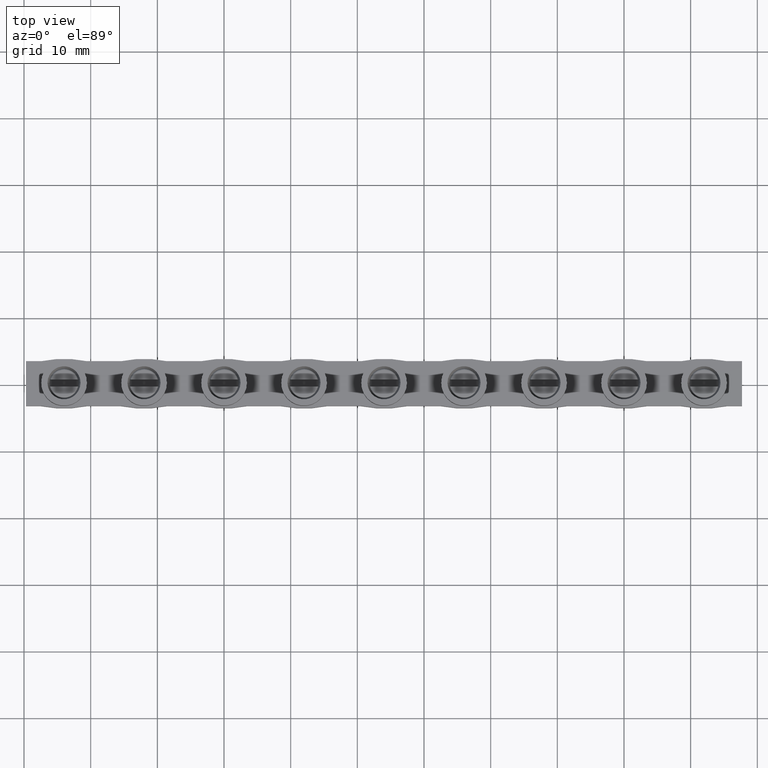
[diagram: clean part render]
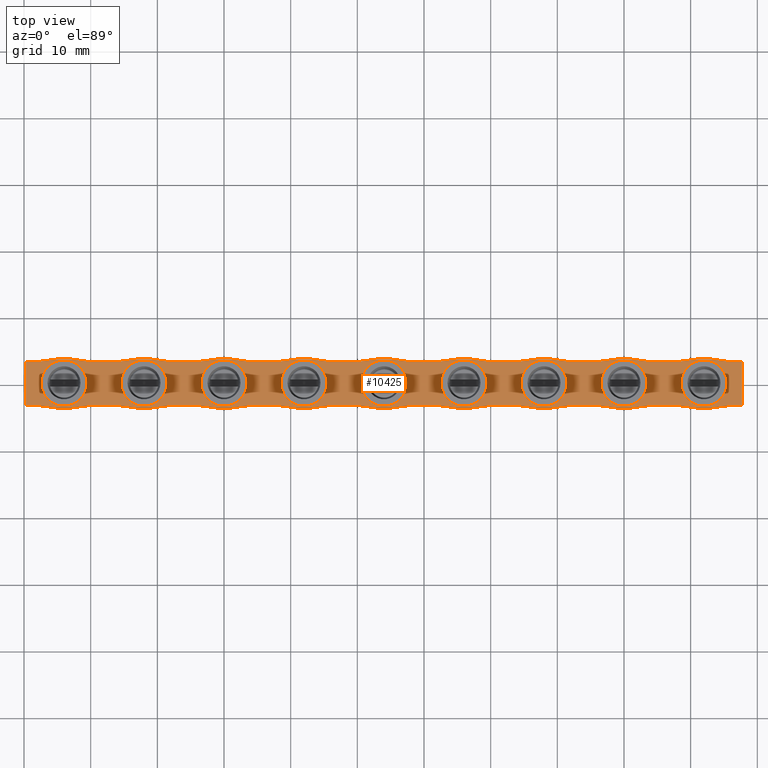
[diagram: same view with one face highlighted and labeled with its STEP entity id]
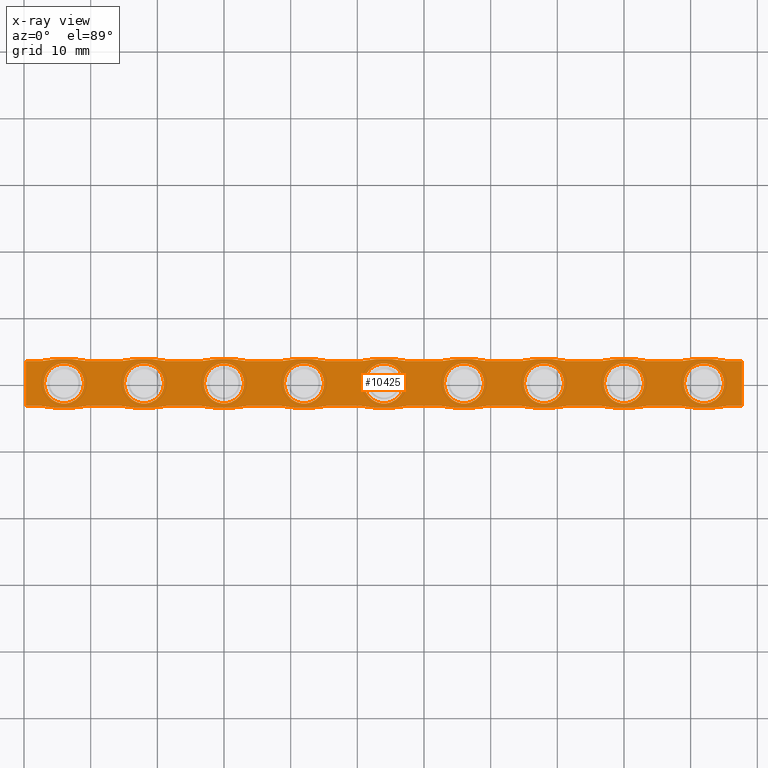
[diagram: x-ray of the same camera — body ghosted, the highlighted face saturated]
A machine part, top view. The second image highlights one B-rep face of the part: STEP entity #10425.
The next image is the same camera in x-ray: the body ghosted, the highlighted face saturated — about 0% of this face is hidden behind the body in this view.
In plain terms, the highlighted planar face has unit normal (0, 0, -1).
Its self-contained STEP definition (entity closure, byte-faithful):
#116 = CARTESIAN_POINT ( 'NONE',  ( -12.00000000000000000, -2.289291466493766400E-015, -0.9000000000000014700 ) ) ;
#120 = DIRECTION ( 'NONE',  ( -1.000000000000000000, 0.0000000000000000000, 0.0000000000000000000 ) ) ;
#145 = DIRECTION ( 'NONE',  ( 0.0000000000000000000, 0.0000000000000000000, 1.000000000000000000 ) ) ;
#157 = CARTESIAN_POINT ( 'NONE',  ( -24.00000000000000000, -4.578582932987532800E-015, -0.9000000000000014700 ) ) ;
#164 = DIRECTION ( 'NONE',  ( 0.0000000000000000000, 0.0000000000000000000, 1.000000000000000000 ) ) ;
#196 = DIRECTION ( 'NONE',  ( -1.000000000000000000, 0.0000000000000000000, 0.0000000000000000000 ) ) ;
#320 = CARTESIAN_POINT ( 'NONE',  ( -56.99999999999999300, -1.107906329272462600E-014, -0.9000000000000014700 ) ) ;
#352 = CARTESIAN_POINT ( 'NONE',  ( -27.00000000000000000, -4.578582932987532800E-015, -0.9000000000000014700 ) ) ;
#372 = CARTESIAN_POINT ( 'NONE',  ( -51.00000000000000700, -9.157165865975065600E-015, -0.9000000000000014700 ) ) ;
#382 = CARTESIAN_POINT ( 'NONE',  ( -33.00000000000000000, -6.500480359737095000E-015, -0.9000000000000014700 ) ) ;
#436 = CARTESIAN_POINT ( 'NONE',  ( 15.00000000000000000, 1.833357540569354400E-015, -0.9000000000000014700 ) ) ;
#460 = CARTESIAN_POINT ( 'NONE',  ( -45.00000000000000000, -8.789771826230860200E-015, -0.9000000000000014700 ) ) ;
#486 = CARTESIAN_POINT ( 'NONE',  ( -39.00000000000000700, -6.867874399481300400E-015, -0.9000000000000014700 ) ) ;
#487 = CARTESIAN_POINT ( 'NONE',  ( -2.999999999999999100, 0.0000000000000000000, -0.9000000000000014700 ) ) ;
#510 = CARTESIAN_POINT ( 'NONE',  ( -21.00000000000000000, -4.211188893243326600E-015, -0.9000000000000014700 ) ) ;
#515 = CARTESIAN_POINT ( 'NONE',  ( -15.00000000000000000, -2.289291466493766400E-015, -0.9000000000000014700 ) ) ;
#562 = CARTESIAN_POINT ( 'NONE',  ( 9.000000000000001800, 1.465963500825148300E-015, -0.9000000000000014700 ) ) ;
#570 = CARTESIAN_POINT ( 'NONE',  ( -89.70000000000000300, 3.350000000000068500, -0.9000000000000014700 ) ) ;
#571 = CARTESIAN_POINT ( 'NONE',  ( -80.57326686186493700, 3.350000000000069400, -0.9000000000000014700 ) ) ;
#591 = CARTESIAN_POINT ( 'NONE',  ( -68.57326686186493700, 3.350000000000071600, -0.9000000000000014700 ) ) ;
#604 = CARTESIAN_POINT ( 'NONE',  ( -3.447100230629700900, -3.349999999999916600, -0.9000000000000014700 ) ) ;
#611 = CARTESIAN_POINT ( 'NONE',  ( 8.573266861864922800, 3.350000000000086200, -0.9000000000000014700 ) ) ;
#613 = CARTESIAN_POINT ( 'NONE',  ( 2.999999999999999100, 3.673940397442058900E-016, -0.9000000000000014700 ) ) ;
#619 = CARTESIAN_POINT ( 'NONE',  ( -87.42673313813507700, 3.350000000000068500, -0.9000000000000014700 ) ) ;
#631 = CARTESIAN_POINT ( 'NONE',  ( -8.552899769370284800, -3.349999999999917900, -0.9000000000000014700 ) ) ;
#637 = CARTESIAN_POINT ( 'NONE',  ( -9.000000000000001800, -1.921897426749560600E-015, -0.9000000000000014700 ) ) ;
#641 = CARTESIAN_POINT ( 'NONE',  ( 15.44710023062971500, -3.349999999999914400, -0.9000000000000014700 ) ) ;
#653 = CARTESIAN_POINT ( 'NONE',  ( -63.44710023062970100, -3.349999999999927700, -0.9000000000000014700 ) ) ;
#654 = CARTESIAN_POINT ( 'NONE',  ( -39.44710023062970800, -3.349999999999923300, -0.9000000000000014700 ) ) ;
#661 = CARTESIAN_POINT ( 'NONE',  ( -8.573266861864919300, 3.350000000000083600, -0.9000000000000014700 ) ) ;
#662 = CARTESIAN_POINT ( 'NONE',  ( -44.57326686186492300, 3.350000000000076500, -0.9000000000000014700 ) ) ;
#669 = CARTESIAN_POINT ( 'NONE',  ( 3.426733138135080300, 3.350000000000085400, -0.9000000000000014700 ) ) ;
#673 = CARTESIAN_POINT ( 'NONE',  ( -63.42673313813507000, 3.350000000000073400, -0.9000000000000014700 ) ) ;
#675 = CARTESIAN_POINT ( 'NONE',  ( -56.55289976937027800, -3.349999999999926800, -0.9000000000000014700 ) ) ;
#681 = CARTESIAN_POINT ( 'NONE',  ( -75.42673313813507700, 3.350000000000070700, -0.9000000000000014700 ) ) ;
#687 = CARTESIAN_POINT ( 'NONE',  ( 17.69999999999921800, 3.350000000000087100, -0.9000000000000014700 ) ) ;
#693 = CARTESIAN_POINT ( 'NONE',  ( -27.42673313813508100, 3.350000000000080000, -0.9000000000000014700 ) ) ;
#695 = CARTESIAN_POINT ( 'NONE',  ( -15.44710023062970100, -3.349999999999918400, -0.9000000000000014700 ) ) ;
#702 = CARTESIAN_POINT ( 'NONE',  ( 8.552899769370297300, -3.349999999999914800, -0.9000000000000014700 ) ) ;
#706 = CARTESIAN_POINT ( 'NONE',  ( -20.55289976937028500, -3.349999999999920200, -0.9000000000000014700 ) ) ;
#707 = CARTESIAN_POINT ( 'NONE',  ( -56.57326686186491600, 3.350000000000074300, -0.9000000000000014700 ) ) ;
#708 = DIRECTION ( 'NONE',  ( -1.000000000000000000, 0.0000000000000000000, 0.0000000000000000000 ) ) ;
#714 = CARTESIAN_POINT ( 'NONE',  ( 17.69999999999921800, -3.349999999999913900, -0.9000000000000014700 ) ) ;
#728 = CARTESIAN_POINT ( 'NONE',  ( -68.55289976937028500, -3.349999999999929500, -0.9000000000000014700 ) ) ;
#730 = CARTESIAN_POINT ( 'NONE',  ( -27.44710023062970100, -3.349999999999921000, -0.9000000000000014700 ) ) ;
#735 = CARTESIAN_POINT ( 'NONE',  ( -87.44710023062971500, -3.349999999999932600, -0.9000000000000014700 ) ) ;
#736 = CARTESIAN_POINT ( 'NONE',  ( -3.426733138135080300, 3.350000000000084500, -0.9000000000000014700 ) ) ;
#741 = CARTESIAN_POINT ( 'NONE',  ( -20.57326686186491900, 3.350000000000080900, -0.9000000000000014700 ) ) ;
#744 = CARTESIAN_POINT ( 'NONE',  ( -32.55289976937028500, -3.349999999999922400, -0.9000000000000014700 ) ) ;
#745 = CARTESIAN_POINT ( 'NONE',  ( -80.55289976937028500, -3.349999999999931700, -0.9000000000000014700 ) ) ;
#746 = CARTESIAN_POINT ( 'NONE',  ( -89.70000000000000300, -3.349999999999932600, -0.9000000000000014700 ) ) ;
#749 = CARTESIAN_POINT ( 'NONE',  ( -44.55289976937028500, -3.349999999999924600, -0.9000000000000014700 ) ) ;
#756 = CARTESIAN_POINT ( 'NONE',  ( -75.44710023062971500, -3.349999999999930400, -0.9000000000000014700 ) ) ;
#760 = CARTESIAN_POINT ( 'NONE',  ( -51.42673313813508400, 3.350000000000075600, -0.9000000000000014700 ) ) ;
#764 = CARTESIAN_POINT ( 'NONE',  ( -39.42673313813508400, 3.350000000000077800, -0.9000000000000014700 ) ) ;
#765 = DIRECTION ( 'NONE',  ( 0.0000000000000000000, 0.0000000000000000000, 1.000000000000000000 ) ) ;
#766 = CARTESIAN_POINT ( 'NONE',  ( 3.447100230629714700, -3.349999999999915700, -0.9000000000000014700 ) ) ;
#779 = CARTESIAN_POINT ( 'NONE',  ( -51.44710023062970800, -3.349999999999925500, -0.9000000000000014700 ) ) ;
#781 = CARTESIAN_POINT ( 'NONE',  ( -15.42673313813508100, 3.350000000000082700, -0.9000000000000014700 ) ) ;
#797 = CARTESIAN_POINT ( 'NONE',  ( 12.00000000000000000, 1.465963500825148300E-015, -0.9000000000000014700 ) ) ;
#808 = DIRECTION ( 'NONE',  ( 0.0000000000000000000, 0.0000000000000000000, 1.000000000000000000 ) ) ;
#814 = CARTESIAN_POINT ( 'NONE',  ( -72.00000000000001400, -13.25000000000035900, -0.9000000000000014700 ) ) ;
#853 = CARTESIAN_POINT ( 'NONE',  ( 15.42673313813508100, 3.350000000000086700, -0.9000000000000014700 ) ) ;
#872 = DIRECTION ( 'NONE',  ( -0.0000000000000000000, -0.0000000000000000000, -1.000000000000000000 ) ) ;
#879 = CARTESIAN_POINT ( 'NONE',  ( -32.57326686186492300, 3.350000000000078700, -0.9000000000000014700 ) ) ;
#892 = DIRECTION ( 'NONE',  ( -1.000000000000000000, 0.0000000000000000000, 0.0000000000000000000 ) ) ;
#900 = CARTESIAN_POINT ( 'NONE',  ( -12.00000000000000000, -2.289291466493766400E-015, -0.9000000000000014700 ) ) ;
#910 = DIRECTION ( 'NONE',  ( 1.000000000000000000, 0.0000000000000000000, 0.0000000000000000000 ) ) ;
#1921 = CARTESIAN_POINT ( 'NONE',  ( -81.00000000000000000, -1.565764622571216100E-014, -0.9000000000000014700 ) ) ;
#1931 = CARTESIAN_POINT ( 'NONE',  ( -69.00000000000000000, -1.336835475921839500E-014, -0.9000000000000014700 ) ) ;
#1980 = CARTESIAN_POINT ( 'NONE',  ( -87.00000000000001400, -1.602504026545636700E-014, -0.9000000000000014700 ) ) ;
#1992 = CARTESIAN_POINT ( 'NONE',  ( -63.00000000000000000, -1.144645733246883200E-014, -0.9000000000000014700 ) ) ;
#2029 = CARTESIAN_POINT ( 'NONE',  ( -75.00000000000001400, -1.373574879896260100E-014, -0.9000000000000014700 ) ) ;
#4192 = AXIS2_PLACEMENT_3D ( 'NONE', #12178, #12187, #12181 ) ;
#4199 = AXIS2_PLACEMENT_3D ( 'NONE', #11339, #11304, #11341 ) ;
#4203 = CIRCLE ( 'NONE', #4192, 3.000000000000002700 ) ;
#4233 = CIRCLE ( 'NONE', #4199, 3.000000000000002700 ) ;
#4292 = CIRCLE ( 'NONE', #4295, 3.000000000000002700 ) ;
#4295 = AXIS2_PLACEMENT_3D ( 'NONE', #11892, #11894, #11873 ) ;
#4380 = CIRCLE ( 'NONE', #4381, 3.000000000000002700 ) ;
#4381 = AXIS2_PLACEMENT_3D ( 'NONE', #12118, #12096, #12120 ) ;
#4395 = AXIS2_PLACEMENT_3D ( 'NONE', #11821, #12095, #10262 ) ;
#4403 = CIRCLE ( 'NONE', #4395, 3.000000000000002700 ) ;
#4441 = AXIS2_PLACEMENT_3D ( 'NONE', #5558, #5537, #5580 ) ;
#4446 = CIRCLE ( 'NONE', #4441, 2.999999999999999100 ) ;
#4449 = CIRCLE ( 'NONE', #4482, 2.999999999999999100 ) ;
#4482 = AXIS2_PLACEMENT_3D ( 'NONE', #157, #164, #196 ) ;
#4552 = AXIS2_PLACEMENT_3D ( 'NONE', #797, #765, #708 ) ;
#4578 = CIRCLE ( 'NONE', #4552, 2.999999999999999100 ) ;
#4613 = AXIS2_PLACEMENT_3D ( 'NONE', #116, #145, #120 ) ;
#4614 = CIRCLE ( 'NONE', #4637, 2.999999999999999100 ) ;
#4628 = AXIS2_PLACEMENT_3D ( 'NONE', #814, #872, #910 ) ;
#4632 = CIRCLE ( 'NONE', #4628, 16.95000000000021600 ) ;
#4635 = CIRCLE ( 'NONE', #4613, 2.999999999999999100 ) ;
#4637 = AXIS2_PLACEMENT_3D ( 'NONE', #900, #808, #892 ) ;
#4653 = AXIS2_PLACEMENT_3D ( 'NONE', #12279, #12265, #12270 ) ;
#4656 = CIRCLE ( 'NONE', #4688, 16.95000000000021600 ) ;
#4667 = VECTOR ( 'NONE', #12255, 1000.000000000000000 ) ;
#4668 = AXIS2_PLACEMENT_3D ( 'NONE', #12205, #12212, #12224 ) ;
#4677 = VECTOR ( 'NONE', #12246, 1000.000000000000000 ) ;
#4684 = CIRCLE ( 'NONE', #4653, 2.999999999999999100 ) ;
#4686 = VECTOR ( 'NONE', #12252, 1000.000000000000000 ) ;
#4688 = AXIS2_PLACEMENT_3D ( 'NONE', #12293, #12328, #12311 ) ;
#4690 = CIRCLE ( 'NONE', #4668, 17.15000000000021900 ) ;
#4695 = VECTOR ( 'NONE', #12373, 1000.000000000000000 ) ;
#4701 = VECTOR ( 'NONE', #12359, 1000.000000000000000 ) ;
#4703 = CIRCLE ( 'NONE', #4716, 16.95000000000022000 ) ;
#4706 = CIRCLE ( 'NONE', #4707, 16.95000000000022000 ) ;
#4707 = AXIS2_PLACEMENT_3D ( 'NONE', #12339, #12337, #12363 ) ;
#4709 = CIRCLE ( 'NONE', #4713, 16.95000000000022000 ) ;
#4713 = AXIS2_PLACEMENT_3D ( 'NONE', #12353, #12370, #12360 ) ;
#4715 = VECTOR ( 'NONE', #12335, 1000.000000000000000 ) ;
#4716 = AXIS2_PLACEMENT_3D ( 'NONE', #12343, #12352, #12341 ) ;
#4717 = CIRCLE ( 'NONE', #4718, 17.15000000000021900 ) ;
#4718 = AXIS2_PLACEMENT_3D ( 'NONE', #12355, #12356, #12364 ) ;
#4719 = VECTOR ( 'NONE', #12336, 1000.000000000000000 ) ;
#4721 = VECTOR ( 'NONE', #12306, 1000.000000000000000 ) ;
#4724 = VECTOR ( 'NONE', #12346, 1000.000000000000000 ) ;
#4726 = VECTOR ( 'NONE', #12354, 1000.000000000000000 ) ;
#4727 = CIRCLE ( 'NONE', #4752, 17.15000000000021900 ) ;
#4729 = CIRCLE ( 'NONE', #4758, 16.95000000000022000 ) ;
#4731 = CIRCLE ( 'NONE', #4740, 3.000000000000002700 ) ;
#4737 = CIRCLE ( 'NONE', #4755, 3.000000000000002700 ) ;
#4738 = AXIS2_PLACEMENT_3D ( 'NONE', #12406, #12399, #12379 ) ;
#4740 = AXIS2_PLACEMENT_3D ( 'NONE', #12454, #12462, #12434 ) ;
#4741 = AXIS2_PLACEMENT_3D ( 'NONE', #12382, #12384, #12386 ) ;
#4744 = CIRCLE ( 'NONE', #4760, 3.000000000000002700 ) ;
#4746 = VECTOR ( 'NONE', #12378, 1000.000000000000000 ) ;
#4747 = CIRCLE ( 'NONE', #4765, 16.95000000000022000 ) ;
#4750 = CIRCLE ( 'NONE', #4766, 17.15000000000021900 ) ;
#4751 = CIRCLE ( 'NONE', #4738, 16.95000000000021600 ) ;
#4752 = AXIS2_PLACEMENT_3D ( 'NONE', #12410, #12411, #12397 ) ;
#4753 = CIRCLE ( 'NONE', #4741, 2.999999999999999100 ) ;
#4754 = VECTOR ( 'NONE', #12458, 1000.000000000000000 ) ;
#4755 = AXIS2_PLACEMENT_3D ( 'NONE', #12451, #12438, #12433 ) ;
#4757 = VECTOR ( 'NONE', #12452, 1000.000000000000000 ) ;
#4758 = AXIS2_PLACEMENT_3D ( 'NONE', #12443, #12453, #12461 ) ;
#4760 = AXIS2_PLACEMENT_3D ( 'NONE', #12427, #12428, #12460 ) ;
#4762 = CIRCLE ( 'NONE', #4777, 3.000000000000002700 ) ;
#4763 = VECTOR ( 'NONE', #12426, 1000.000000000000000 ) ;
#4765 = AXIS2_PLACEMENT_3D ( 'NONE', #12348, #12420, #12394 ) ;
#4766 = AXIS2_PLACEMENT_3D ( 'NONE', #12422, #12464, #12456 ) ;
#4768 = CIRCLE ( 'NONE', #4769, 17.15000000000021900 ) ;
#4769 = AXIS2_PLACEMENT_3D ( 'NONE', #12485, #12473, #12500 ) ;
#4770 = VECTOR ( 'NONE', #12421, 1000.000000000000000 ) ;
#4772 = VECTOR ( 'NONE', #12471, 1000.000000000000000 ) ;
#4774 = VECTOR ( 'NONE', #12459, 1000.000000000000000 ) ;
#4775 = VECTOR ( 'NONE', #12493, 1000.000000000000000 ) ;
#4776 = VECTOR ( 'NONE', #12401, 1000.000000000000000 ) ;
#4777 = AXIS2_PLACEMENT_3D ( 'NONE', #12404, #12387, #12390 ) ;
#4778 = CIRCLE ( 'NONE', #4794, 17.15000000000021900 ) ;
#4782 = AXIS2_PLACEMENT_3D ( 'NONE', #12533, #12522, #12526 ) ;
#4786 = AXIS2_PLACEMENT_3D ( 'NONE', #12534, #12516, #12520 ) ;
#4789 = CIRCLE ( 'NONE', #4786, 17.15000000000021900 ) ;
#4790 = AXIS2_PLACEMENT_3D ( 'NONE', #12465, #12491, #12494 ) ;
#4792 = AXIS2_PLACEMENT_3D ( 'NONE', #12536, #12537, #12538 ) ;
#4793 = VECTOR ( 'NONE', #12539, 1000.000000000000000 ) ;
#4794 = AXIS2_PLACEMENT_3D ( 'NONE', #12499, #12480, #12495 ) ;
#4796 = VECTOR ( 'NONE', #12506, 1000.000000000000000 ) ;
#4798 = AXIS2_PLACEMENT_3D ( 'NONE', #12501, #12507, #12498 ) ;
#4802 = CIRCLE ( 'NONE', #4790, 3.000000000000002700 ) ;
#4805 = AXIS2_PLACEMENT_3D ( 'NONE', #12504, #12474, #12482 ) ;
#4807 = CIRCLE ( 'NONE', #4805, 2.999999999999999100 ) ;
#4810 = CIRCLE ( 'NONE', #4782, 17.15000000000021900 ) ;
#4813 = CIRCLE ( 'NONE', #4792, 16.95000000000022000 ) ;
#4814 = VECTOR ( 'NONE', #12540, 1000.000000000000000 ) ;
#4819 = CIRCLE ( 'NONE', #4798, 17.15000000000021900 ) ;
#4826 = EDGE_LOOP ( 'NONE', ( #5525, #5526 ) ) ;
#4832 = EDGE_LOOP ( 'NONE', ( #5627, #5532 ) ) ;
#4846 = EDGE_LOOP ( 'NONE', ( #5584, #5543 ) ) ;
#4849 = EDGE_LOOP ( 'NONE', ( #5522, #5624 ) ) ;
#4853 = EDGE_LOOP ( 'NONE', ( #5563, #5640 ) ) ;
#4864 = EDGE_LOOP ( 'NONE', ( #5530, #5568 ) ) ;
#4868 = EDGE_LOOP ( 'NONE', ( #5527, #5544 ) ) ;
#4870 = EDGE_LOOP ( 'NONE', ( #5555, #5572 ) ) ;
#4876 = EDGE_LOOP ( 'NONE', ( #8892, #8976 ) ) ;
#4879 = EDGE_LOOP ( 'NONE', ( #8971, #8943, #8919, #8983, #8921, #8954, #8974, #8931, #8980, #8941, #8898, #8973, #8905, #8963, #8958, #8926, #8953, #8949, #8894, #8935, #8918, #8978, #8937, #8951, #8961, #8965, #8939, #8960, #8945, #8947, #8986, #8911, #8902, #8948, #8982, #8956, #8906, #5593, #5541, #5583 ) ) ;
#4953 = VERTEX_POINT ( 'NONE', #1921 ) ;
#4983 = VERTEX_POINT ( 'NONE', #1931 ) ;
#4991 = VERTEX_POINT ( 'NONE', #1980 ) ;
#5016 = VERTEX_POINT ( 'NONE', #1992 ) ;
#5032 = VERTEX_POINT ( 'NONE', #2029 ) ;
#5048 = VERTEX_POINT ( 'NONE', #320 ) ;
#5072 = VERTEX_POINT ( 'NONE', #372 ) ;
#5097 = VERTEX_POINT ( 'NONE', #352 ) ;
#5126 = VERTEX_POINT ( 'NONE', #460 ) ;
#5147 = VERTEX_POINT ( 'NONE', #436 ) ;
#5148 = VERTEX_POINT ( 'NONE', #382 ) ;
#5161 = VERTEX_POINT ( 'NONE', #510 ) ;
#5174 = VERTEX_POINT ( 'NONE', #486 ) ;
#5184 = VERTEX_POINT ( 'NONE', #487 ) ;
#5189 = VERTEX_POINT ( 'NONE', #562 ) ;
#5207 = VERTEX_POINT ( 'NONE', #570 ) ;
#5208 = VERTEX_POINT ( 'NONE', #571 ) ;
#5215 = VERTEX_POINT ( 'NONE', #515 ) ;
#5219 = VERTEX_POINT ( 'NONE', #673 ) ;
#5220 = VERTEX_POINT ( 'NONE', #611 ) ;
#5222 = VERTEX_POINT ( 'NONE', #641 ) ;
#5227 = VERTEX_POINT ( 'NONE', #591 ) ;
#5229 = VERTEX_POINT ( 'NONE', #604 ) ;
#5230 = VERTEX_POINT ( 'NONE', #631 ) ;
#5232 = VERTEX_POINT ( 'NONE', #619 ) ;
#5254 = VERTEX_POINT ( 'NONE', #637 ) ;
#5255 = VERTEX_POINT ( 'NONE', #613 ) ;
#5256 = VERTEX_POINT ( 'NONE', #669 ) ;
#5266 = VERTEX_POINT ( 'NONE', #675 ) ;
#5267 = VERTEX_POINT ( 'NONE', #653 ) ;
#5268 = VERTEX_POINT ( 'NONE', #654 ) ;
#5269 = VERTEX_POINT ( 'NONE', #661 ) ;
#5270 = VERTEX_POINT ( 'NONE', #662 ) ;
#5279 = VERTEX_POINT ( 'NONE', #756 ) ;
#5282 = VERTEX_POINT ( 'NONE', #744 ) ;
#5284 = VERTEX_POINT ( 'NONE', #760 ) ;
#5285 = VERTEX_POINT ( 'NONE', #746 ) ;
#5286 = VERTEX_POINT ( 'NONE', #736 ) ;
#5288 = VERTEX_POINT ( 'NONE', #714 ) ;
#5291 = VERTEX_POINT ( 'NONE', #735 ) ;
#5293 = VERTEX_POINT ( 'NONE', #779 ) ;
#5296 = VERTEX_POINT ( 'NONE', #702 ) ;
#5298 = VERTEX_POINT ( 'NONE', #681 ) ;
#5301 = VERTEX_POINT ( 'NONE', #693 ) ;
#5303 = VERTEX_POINT ( 'NONE', #707 ) ;
#5305 = VERTEX_POINT ( 'NONE', #730 ) ;
#5309 = VERTEX_POINT ( 'NONE', #764 ) ;
#5311 = VERTEX_POINT ( 'NONE', #695 ) ;
#5312 = VERTEX_POINT ( 'NONE', #766 ) ;
#5313 = VERTEX_POINT ( 'NONE', #741 ) ;
#5316 = VERTEX_POINT ( 'NONE', #687 ) ;
#5320 = VERTEX_POINT ( 'NONE', #749 ) ;
#5321 = VERTEX_POINT ( 'NONE', #745 ) ;
#5324 = VERTEX_POINT ( 'NONE', #706 ) ;
#5325 = VERTEX_POINT ( 'NONE', #728 ) ;
#5328 = VERTEX_POINT ( 'NONE', #781 ) ;
#5356 = VERTEX_POINT ( 'NONE', #853 ) ;
#5381 = VERTEX_POINT ( 'NONE', #879 ) ;
#5522 = ORIENTED_EDGE ( 'NONE', *, *, #11416, .F. ) ;
#5525 = ORIENTED_EDGE ( 'NONE', *, *, #11451, .F. ) ;
#5526 = ORIENTED_EDGE ( 'NONE', *, *, #10969, .F. ) ;
#5527 = ORIENTED_EDGE ( 'NONE', *, *, #11403, .F. ) ;
#5530 = ORIENTED_EDGE ( 'NONE', *, *, #11418, .F. ) ;
#5532 = ORIENTED_EDGE ( 'NONE', *, *, #11196, .F. ) ;
#5537 = DIRECTION ( 'NONE',  ( 0.0000000000000000000, 0.0000000000000000000, 1.000000000000000000 ) ) ;
#5541 = ORIENTED_EDGE ( 'NONE', *, *, #11393, .T. ) ;
#5543 = ORIENTED_EDGE ( 'NONE', *, *, #11043, .F. ) ;
#5544 = ORIENTED_EDGE ( 'NONE', *, *, #11102, .F. ) ;
#5555 = ORIENTED_EDGE ( 'NONE', *, *, #11376, .F. ) ;
#5558 = CARTESIAN_POINT ( 'NONE',  ( 0.0000000000000000000, 0.0000000000000000000, -0.9000000000000014700 ) ) ;
#5563 = ORIENTED_EDGE ( 'NONE', *, *, #11250, .F. ) ;
#5568 = ORIENTED_EDGE ( 'NONE', *, *, #11063, .F. ) ;
#5572 = ORIENTED_EDGE ( 'NONE', *, *, #10922, .F. ) ;
#5580 = DIRECTION ( 'NONE',  ( -1.000000000000000000, 0.0000000000000000000, 0.0000000000000000000 ) ) ;
#5583 = ORIENTED_EDGE ( 'NONE', *, *, #11385, .F. ) ;
#5584 = ORIENTED_EDGE ( 'NONE', *, *, #11428, .F. ) ;
#5593 = ORIENTED_EDGE ( 'NONE', *, *, #11411, .F. ) ;
#5624 = ORIENTED_EDGE ( 'NONE', *, *, #10928, .F. ) ;
#5627 = ORIENTED_EDGE ( 'NONE', *, *, #11449, .F. ) ;
#5640 = ORIENTED_EDGE ( 'NONE', *, *, #11209, .F. ) ;
#8878 = AXIS2_PLACEMENT_3D ( 'NONE', #13092, #13107, #13102 ) ;
#8892 = ORIENTED_EDGE ( 'NONE', *, *, #11305, .F. ) ;
#8894 = ORIENTED_EDGE ( 'NONE', *, *, #11351, .T. ) ;
#8898 = ORIENTED_EDGE ( 'NONE', *, *, #11461, .T. ) ;
#8902 = ORIENTED_EDGE ( 'NONE', *, *, #11468, .T. ) ;
#8905 = ORIENTED_EDGE ( 'NONE', *, *, #11397, .T. ) ;
#8906 = ORIENTED_EDGE ( 'NONE', *, *, #11437, .T. ) ;
#8911 = ORIENTED_EDGE ( 'NONE', *, *, #11366, .F. ) ;
#8918 = ORIENTED_EDGE ( 'NONE', *, *, #11314, .T. ) ;
#8919 = ORIENTED_EDGE ( 'NONE', *, *, #11311, .T. ) ;
#8921 = ORIENTED_EDGE ( 'NONE', *, *, #11269, .T. ) ;
#8926 = ORIENTED_EDGE ( 'NONE', *, *, #11424, .F. ) ;
#8931 = ORIENTED_EDGE ( 'NONE', *, *, #11271, .F. ) ;
#8935 = ORIENTED_EDGE ( 'NONE', *, *, #11433, .F. ) ;
#8937 = ORIENTED_EDGE ( 'NONE', *, *, #11410, .T. ) ;
#8939 = ORIENTED_EDGE ( 'NONE', *, *, #11421, .T. ) ;
#8941 = ORIENTED_EDGE ( 'NONE', *, *, #11446, .F. ) ;
#8943 = ORIENTED_EDGE ( 'NONE', *, *, #11211, .F. ) ;
#8945 = ORIENTED_EDGE ( 'NONE', *, *, #11355, .T. ) ;
#8947 = ORIENTED_EDGE ( 'NONE', *, *, #11360, .F. ) ;
#8948 = ORIENTED_EDGE ( 'NONE', *, *, #11374, .F. ) ;
#8949 = ORIENTED_EDGE ( 'NONE', *, *, #11382, .F. ) ;
#8951 = ORIENTED_EDGE ( 'NONE', *, *, #11364, .F. ) ;
#8953 = ORIENTED_EDGE ( 'NONE', *, *, #11362, .T. ) ;
#8954 = ORIENTED_EDGE ( 'NONE', *, *, #11328, .T. ) ;
#8956 = ORIENTED_EDGE ( 'NONE', *, *, #11363, .F. ) ;
#8958 = ORIENTED_EDGE ( 'NONE', *, *, #11435, .T. ) ;
#8960 = ORIENTED_EDGE ( 'NONE', *, *, #11459, .F. ) ;
#8961 = ORIENTED_EDGE ( 'NONE', *, *, #11426, .T. ) ;
#8963 = ORIENTED_EDGE ( 'NONE', *, *, #11444, .F. ) ;
#8965 = ORIENTED_EDGE ( 'NONE', *, *, #11369, .T. ) ;
#8971 = ORIENTED_EDGE ( 'NONE', *, *, #11326, .T. ) ;
#8973 = ORIENTED_EDGE ( 'NONE', *, *, #11455, .F. ) ;
#8974 = ORIENTED_EDGE ( 'NONE', *, *, #11345, .T. ) ;
#8976 = ORIENTED_EDGE ( 'NONE', *, *, #11080, .F. ) ;
#8978 = ORIENTED_EDGE ( 'NONE', *, *, #11466, .F. ) ;
#8980 = ORIENTED_EDGE ( 'NONE', *, *, #11415, .T. ) ;
#8982 = ORIENTED_EDGE ( 'NONE', *, *, #11452, .T. ) ;
#8983 = ORIENTED_EDGE ( 'NONE', *, *, #11318, .F. ) ;
#8986 = ORIENTED_EDGE ( 'NONE', *, *, #11408, .T. ) ;
#10262 = DIRECTION ( 'NONE',  ( -1.000000000000000000, 0.0000000000000000000, 0.0000000000000000000 ) ) ;
#10425 = ADVANCED_FACE ( 'NONE', ( #13051, #13056, #13060, #13021, #13030, #13047, #13059, #13010, #13109, #13055 ), #13106, .F. ) ;
#10922 = EDGE_CURVE ( 'NONE', #4953, #4991, #4233, .T. ) ;
#10928 = EDGE_CURVE ( 'NONE', #4983, #5032, #4203, .T. ) ;
#10969 = EDGE_CURVE ( 'NONE', #5126, #5072, #4292, .T. ) ;
#11043 = EDGE_CURVE ( 'NONE', #5048, #5016, #4380, .T. ) ;
#11063 = EDGE_CURVE ( 'NONE', #5148, #5174, #4403, .T. ) ;
#11080 = EDGE_CURVE ( 'NONE', #5255, #5184, #4446, .T. ) ;
#11102 = EDGE_CURVE ( 'NONE', #5161, #5097, #4449, .T. ) ;
#11196 = EDGE_CURVE ( 'NONE', #5147, #5189, #4578, .T. ) ;
#11209 = EDGE_CURVE ( 'NONE', #5254, #5215, #4614, .T. ) ;
#11211 = EDGE_CURVE ( 'NONE', #5298, #5227, #4632, .T. ) ;
#11250 = EDGE_CURVE ( 'NONE', #5215, #5254, #4635, .T. ) ;
#11269 = EDGE_CURVE ( 'NONE', #5232, #5207, #12206, .T. ) ;
#11271 = EDGE_CURVE ( 'NONE', #5321, #5291, #4690, .T. ) ;
#11304 = DIRECTION ( 'NONE',  ( 0.0000000000000000000, 0.0000000000000000000, 1.000000000000000000 ) ) ;
#11305 = EDGE_CURVE ( 'NONE', #5184, #5255, #4684, .T. ) ;
#11311 = EDGE_CURVE ( 'NONE', #5298, #5208, #12263, .T. ) ;
#11314 = EDGE_CURVE ( 'NONE', #5230, #5229, #12247, .T. ) ;
#11318 = EDGE_CURVE ( 'NONE', #5232, #5208, #4656, .T. ) ;
#11326 = EDGE_CURVE ( 'NONE', #5219, #5227, #12330, .T. ) ;
#11328 = EDGE_CURVE ( 'NONE', #5207, #5285, #12309, .T. ) ;
#11339 = CARTESIAN_POINT ( 'NONE',  ( -84.00000000000000000, -1.602504026545636700E-014, -0.9000000000000014700 ) ) ;
#11341 = DIRECTION ( 'NONE',  ( -1.000000000000000000, 0.0000000000000000000, 0.0000000000000000000 ) ) ;
#11345 = EDGE_CURVE ( 'NONE', #5285, #5291, #12321, .T. ) ;
#11351 = EDGE_CURVE ( 'NONE', #5324, #5311, #12375, .T. ) ;
#11355 = EDGE_CURVE ( 'NONE', #5220, #5256, #12323, .T. ) ;
#11360 = EDGE_CURVE ( 'NONE', #5286, #5256, #4706, .T. ) ;
#11362 = EDGE_CURVE ( 'NONE', #5282, #5305, #12349, .T. ) ;
#11363 = EDGE_CURVE ( 'NONE', #5309, #5381, #4709, .T. ) ;
#11364 = EDGE_CURVE ( 'NONE', #5222, #5296, #4717, .T. ) ;
#11366 = EDGE_CURVE ( 'NONE', #5328, #5269, #4703, .T. ) ;
#11369 = EDGE_CURVE ( 'NONE', #5288, #5316, #12345, .T. ) ;
#11374 = EDGE_CURVE ( 'NONE', #5301, #5313, #4747, .T. ) ;
#11376 = EDGE_CURVE ( 'NONE', #4991, #4953, #4762, .T. ) ;
#11382 = EDGE_CURVE ( 'NONE', #5324, #5305, #4727, .T. ) ;
#11385 = EDGE_CURVE ( 'NONE', #5219, #5303, #4751, .T. ) ;
#11393 = EDGE_CURVE ( 'NONE', #5284, #5303, #12392, .T. ) ;
#11397 = EDGE_CURVE ( 'NONE', #5266, #5293, #12408, .T. ) ;
#11403 = EDGE_CURVE ( 'NONE', #5097, #5161, #4753, .T. ) ;
#11408 = EDGE_CURVE ( 'NONE', #5286, #5269, #12437, .T. ) ;
#11410 = EDGE_CURVE ( 'NONE', #5312, #5296, #12450, .T. ) ;
#11411 = EDGE_CURVE ( 'NONE', #5284, #5270, #4729, .T. ) ;
#11415 = EDGE_CURVE ( 'NONE', #5321, #5279, #12441, .T. ) ;
#11416 = EDGE_CURVE ( 'NONE', #5032, #4983, #4731, .T. ) ;
#11418 = EDGE_CURVE ( 'NONE', #5174, #5148, #4737, .T. ) ;
#11421 = EDGE_CURVE ( 'NONE', #5316, #5356, #12446, .T. ) ;
#11424 = EDGE_CURVE ( 'NONE', #5282, #5268, #4750, .T. ) ;
#11426 = EDGE_CURVE ( 'NONE', #5222, #5288, #12432, .T. ) ;
#11428 = EDGE_CURVE ( 'NONE', #5016, #5048, #4744, .T. ) ;
#11433 = EDGE_CURVE ( 'NONE', #5230, #5311, #4768, .T. ) ;
#11435 = EDGE_CURVE ( 'NONE', #5320, #5268, #12423, .T. ) ;
#11437 = EDGE_CURVE ( 'NONE', #5309, #5270, #12488, .T. ) ;
#11444 = EDGE_CURVE ( 'NONE', #5320, #5293, #4819, .T. ) ;
#11446 = EDGE_CURVE ( 'NONE', #5325, #5279, #4778, .T. ) ;
#11449 = EDGE_CURVE ( 'NONE', #5189, #5147, #4807, .T. ) ;
#11451 = EDGE_CURVE ( 'NONE', #5072, #5126, #4802, .T. ) ;
#11452 = EDGE_CURVE ( 'NONE', #5301, #5381, #12492, .T. ) ;
#11455 = EDGE_CURVE ( 'NONE', #5266, #5267, #4810, .T. ) ;
#11459 = EDGE_CURVE ( 'NONE', #5220, #5356, #4813, .T. ) ;
#11461 = EDGE_CURVE ( 'NONE', #5325, #5267, #12525, .T. ) ;
#11466 = EDGE_CURVE ( 'NONE', #5312, #5229, #4789, .T. ) ;
#11468 = EDGE_CURVE ( 'NONE', #5328, #5313, #12521, .T. ) ;
#11821 = CARTESIAN_POINT ( 'NONE',  ( -36.00000000000000700, -6.867874399481300400E-015, -0.9000000000000014700 ) ) ;
#11873 = DIRECTION ( 'NONE',  ( -1.000000000000000000, 0.0000000000000000000, 0.0000000000000000000 ) ) ;
#11892 = CARTESIAN_POINT ( 'NONE',  ( -48.00000000000000000, -9.157165865975065600E-015, -0.9000000000000014700 ) ) ;
#11894 = DIRECTION ( 'NONE',  ( 0.0000000000000000000, 0.0000000000000000000, 1.000000000000000000 ) ) ;
#12095 = DIRECTION ( 'NONE',  ( 0.0000000000000000000, 0.0000000000000000000, 1.000000000000000000 ) ) ;
#12096 = DIRECTION ( 'NONE',  ( 0.0000000000000000000, 0.0000000000000000000, 1.000000000000000000 ) ) ;
#12118 = CARTESIAN_POINT ( 'NONE',  ( -60.00000000000000000, -1.144645733246883200E-014, -0.9000000000000014700 ) ) ;
#12120 = DIRECTION ( 'NONE',  ( -1.000000000000000000, 0.0000000000000000000, 0.0000000000000000000 ) ) ;
#12178 = CARTESIAN_POINT ( 'NONE',  ( -72.00000000000001400, -1.373574879896260100E-014, -0.9000000000000014700 ) ) ;
#12181 = DIRECTION ( 'NONE',  ( -1.000000000000000000, 0.0000000000000000000, 0.0000000000000000000 ) ) ;
#12187 = DIRECTION ( 'NONE',  ( 0.0000000000000000000, 0.0000000000000000000, 1.000000000000000000 ) ) ;
#12205 = CARTESIAN_POINT ( 'NONE',  ( -84.00000000000000000, 13.45000000000007000, -0.9000000000000014700 ) ) ;
#12206 = LINE ( 'NONE', #12217, #4677 ) ;
#12212 = DIRECTION ( 'NONE',  ( 0.0000000000000000000, 0.0000000000000000000, -1.000000000000000000 ) ) ;
#12217 = CARTESIAN_POINT ( 'NONE',  ( -67.84999999999999400, 3.350000000000071100, -0.9000000000000014700 ) ) ;
#12224 = DIRECTION ( 'NONE',  ( -1.000000000000000000, 0.0000000000000000000, 0.0000000000000000000 ) ) ;
#12246 = DIRECTION ( 'NONE',  ( -1.000000000000000000, -1.245679091791856200E-016, -0.0000000000000000000 ) ) ;
#12247 = LINE ( 'NONE', #12264, #4667 ) ;
#12249 = CARTESIAN_POINT ( 'NONE',  ( -55.84999999999999400, 3.350000000000073400, -0.9000000000000014700 ) ) ;
#12252 = DIRECTION ( 'NONE',  ( -1.000000000000000000, -1.245679091791856200E-016, -0.0000000000000000000 ) ) ;
#12255 = DIRECTION ( 'NONE',  ( 1.000000000000000000, 1.245679091791856200E-016, -0.0000000000000000000 ) ) ;
#12263 = LINE ( 'NONE', #12249, #4686 ) ;
#12264 = CARTESIAN_POINT ( 'NONE',  ( 4.150000000000007500, -3.349999999999916200, -0.9000000000000014700 ) ) ;
#12265 = DIRECTION ( 'NONE',  ( 0.0000000000000000000, 0.0000000000000000000, 1.000000000000000000 ) ) ;
#12270 = DIRECTION ( 'NONE',  ( -1.000000000000000000, 0.0000000000000000000, 0.0000000000000000000 ) ) ;
#12279 = CARTESIAN_POINT ( 'NONE',  ( 0.0000000000000000000, 0.0000000000000000000, -0.9000000000000014700 ) ) ;
#12291 = CARTESIAN_POINT ( 'NONE',  ( 4.150000000000007500, 3.350000000000084900, -0.9000000000000014700 ) ) ;
#12293 = CARTESIAN_POINT ( 'NONE',  ( -84.00000000000000000, -13.25000000000036100, -0.9000000000000014700 ) ) ;
#12299 = CARTESIAN_POINT ( 'NONE',  ( -43.84999999999998700, 3.350000000000076000, -0.9000000000000014700 ) ) ;
#12306 = DIRECTION ( 'NONE',  ( -1.000000000000000000, -1.245679091791856200E-016, -0.0000000000000000000 ) ) ;
#12309 = LINE ( 'NONE', #12324, #4719 ) ;
#12311 = DIRECTION ( 'NONE',  ( 1.000000000000000000, 0.0000000000000000000, 0.0000000000000000000 ) ) ;
#12321 = LINE ( 'NONE', #12326, #4715 ) ;
#12323 = LINE ( 'NONE', #12291, #4724 ) ;
#12324 = CARTESIAN_POINT ( 'NONE',  ( -89.70000000000000300, -3.349999999999925900, -0.9000000000000014700 ) ) ;
#12326 = CARTESIAN_POINT ( 'NONE',  ( -67.84999999999999400, -3.349999999999929900, -0.9000000000000014700 ) ) ;
#12328 = DIRECTION ( 'NONE',  ( -0.0000000000000000000, -0.0000000000000000000, -1.000000000000000000 ) ) ;
#12330 = LINE ( 'NONE', #12299, #4721 ) ;
#12335 = DIRECTION ( 'NONE',  ( 1.000000000000000000, 1.245679091791856200E-016, -0.0000000000000000000 ) ) ;
#12336 = DIRECTION ( 'NONE',  ( 2.009125974575783600E-016, -1.000000000000000000, 0.0000000000000000000 ) ) ;
#12337 = DIRECTION ( 'NONE',  ( -0.0000000000000000000, -0.0000000000000000000, -1.000000000000000000 ) ) ;
#12338 = CARTESIAN_POINT ( 'NONE',  ( 17.69999999999921800, -3.349999999999924100, -0.9000000000000014700 ) ) ;
#12339 = CARTESIAN_POINT ( 'NONE',  ( 3.469446951953614200E-015, -13.25000000000034500, -0.9000000000000014700 ) ) ;
#12341 = DIRECTION ( 'NONE',  ( 1.000000000000000000, 0.0000000000000000000, 0.0000000000000000000 ) ) ;
#12342 = CARTESIAN_POINT ( 'NONE',  ( -7.849999999999992500, -3.349999999999918400, -0.9000000000000014700 ) ) ;
#12343 = CARTESIAN_POINT ( 'NONE',  ( -11.99999999999999600, -13.25000000000034600, -0.9000000000000014700 ) ) ;
#12345 = LINE ( 'NONE', #12338, #4695 ) ;
#12346 = DIRECTION ( 'NONE',  ( -1.000000000000000000, -1.245679091791856200E-016, -0.0000000000000000000 ) ) ;
#12348 = CARTESIAN_POINT ( 'NONE',  ( -23.99999999999999600, -13.25000000000035000, -0.9000000000000014700 ) ) ;
#12349 = LINE ( 'NONE', #12342, #4726 ) ;
#12352 = DIRECTION ( 'NONE',  ( -0.0000000000000000000, -0.0000000000000000000, -1.000000000000000000 ) ) ;
#12353 = CARTESIAN_POINT ( 'NONE',  ( -36.00000000000000700, -13.25000000000035200, -0.9000000000000014700 ) ) ;
#12354 = DIRECTION ( 'NONE',  ( 1.000000000000000000, 1.245679091791856200E-016, -0.0000000000000000000 ) ) ;
#12355 = CARTESIAN_POINT ( 'NONE',  ( 12.00000000000000400, 13.45000000000008600, -0.9000000000000014700 ) ) ;
#12356 = DIRECTION ( 'NONE',  ( 0.0000000000000000000, 0.0000000000000000000, -1.000000000000000000 ) ) ;
#12359 = DIRECTION ( 'NONE',  ( 1.000000000000000000, 1.245679091791856200E-016, -0.0000000000000000000 ) ) ;
#12360 = DIRECTION ( 'NONE',  ( 1.000000000000000000, -1.064373106204044800E-014, 0.0000000000000000000 ) ) ;
#12363 = DIRECTION ( 'NONE',  ( 1.000000000000000000, 0.0000000000000000000, 0.0000000000000000000 ) ) ;
#12364 = DIRECTION ( 'NONE',  ( -1.000000000000000000, 0.0000000000000000000, 0.0000000000000000000 ) ) ;
#12368 = CARTESIAN_POINT ( 'NONE',  ( 4.150000000000007500, -3.349999999999916200, -0.9000000000000014700 ) ) ;
#12370 = DIRECTION ( 'NONE',  ( -0.0000000000000000000, -0.0000000000000000000, -1.000000000000000000 ) ) ;
#12373 = DIRECTION ( 'NONE',  ( 0.0000000000000000000, 1.000000000000000000, 0.0000000000000000000 ) ) ;
#12375 = LINE ( 'NONE', #12368, #4701 ) ;
#12377 = CARTESIAN_POINT ( 'NONE',  ( -31.84999999999999100, 3.350000000000078200, -0.9000000000000014700 ) ) ;
#12378 = DIRECTION ( 'NONE',  ( -1.000000000000000000, -1.245679091791856200E-016, -0.0000000000000000000 ) ) ;
#12379 = DIRECTION ( 'NONE',  ( 1.000000000000000000, -5.321865531020225000E-015, 0.0000000000000000000 ) ) ;
#12382 = CARTESIAN_POINT ( 'NONE',  ( -24.00000000000000000, -4.578582932987532800E-015, -0.9000000000000014700 ) ) ;
#12384 = DIRECTION ( 'NONE',  ( 0.0000000000000000000, 0.0000000000000000000, 1.000000000000000000 ) ) ;
#12386 = DIRECTION ( 'NONE',  ( -1.000000000000000000, 0.0000000000000000000, 0.0000000000000000000 ) ) ;
#12387 = DIRECTION ( 'NONE',  ( 0.0000000000000000000, 0.0000000000000000000, 1.000000000000000000 ) ) ;
#12390 = DIRECTION ( 'NONE',  ( -1.000000000000000000, 0.0000000000000000000, 0.0000000000000000000 ) ) ;
#12392 = LINE ( 'NONE', #12377, #4746 ) ;
#12394 = DIRECTION ( 'NONE',  ( 1.000000000000000000, 0.0000000000000000000, 0.0000000000000000000 ) ) ;
#12395 = CARTESIAN_POINT ( 'NONE',  ( -31.84999999999999100, -3.349999999999922800, -0.9000000000000014700 ) ) ;
#12397 = DIRECTION ( 'NONE',  ( -1.000000000000000000, 0.0000000000000000000, 0.0000000000000000000 ) ) ;
#12399 = DIRECTION ( 'NONE',  ( -0.0000000000000000000, -0.0000000000000000000, -1.000000000000000000 ) ) ;
#12401 = DIRECTION ( 'NONE',  ( 1.000000000000000000, 1.245679091791856200E-016, -0.0000000000000000000 ) ) ;
#12404 = CARTESIAN_POINT ( 'NONE',  ( -84.00000000000000000, -1.602504026545636700E-014, -0.9000000000000014700 ) ) ;
#12406 = CARTESIAN_POINT ( 'NONE',  ( -60.00000000000000000, -13.25000000000035700, -0.9000000000000014700 ) ) ;
#12408 = LINE ( 'NONE', #12395, #4776 ) ;
#12410 = CARTESIAN_POINT ( 'NONE',  ( -23.99999999999999600, 13.45000000000007900, -0.9000000000000014700 ) ) ;
#12411 = DIRECTION ( 'NONE',  ( 0.0000000000000000000, 0.0000000000000000000, -1.000000000000000000 ) ) ;
#12420 = DIRECTION ( 'NONE',  ( -0.0000000000000000000, -0.0000000000000000000, -1.000000000000000000 ) ) ;
#12421 = DIRECTION ( 'NONE',  ( 1.000000000000000000, 1.245679091791856200E-016, -0.0000000000000000000 ) ) ;
#12422 = CARTESIAN_POINT ( 'NONE',  ( -36.00000000000000700, 13.45000000000007700, -0.9000000000000014700 ) ) ;
#12423 = LINE ( 'NONE', #12439, #4772 ) ;
#12424 = CARTESIAN_POINT ( 'NONE',  ( -55.84999999999999400, -3.349999999999927700, -0.9000000000000014700 ) ) ;
#12426 = DIRECTION ( 'NONE',  ( 1.000000000000000000, 1.245679091791856200E-016, -0.0000000000000000000 ) ) ;
#12427 = CARTESIAN_POINT ( 'NONE',  ( -60.00000000000000000, -1.144645733246883200E-014, -0.9000000000000014700 ) ) ;
#12428 = DIRECTION ( 'NONE',  ( 0.0000000000000000000, 0.0000000000000000000, 1.000000000000000000 ) ) ;
#12432 = LINE ( 'NONE', #12455, #4763 ) ;
#12433 = DIRECTION ( 'NONE',  ( -1.000000000000000000, 0.0000000000000000000, 0.0000000000000000000 ) ) ;
#12434 = DIRECTION ( 'NONE',  ( -1.000000000000000000, 0.0000000000000000000, 0.0000000000000000000 ) ) ;
#12437 = LINE ( 'NONE', #12449, #4754 ) ;
#12438 = DIRECTION ( 'NONE',  ( 0.0000000000000000000, 0.0000000000000000000, 1.000000000000000000 ) ) ;
#12439 = CARTESIAN_POINT ( 'NONE',  ( -19.84999999999999800, -3.349999999999920600, -0.9000000000000014700 ) ) ;
#12441 = LINE ( 'NONE', #12424, #4774 ) ;
#12443 = CARTESIAN_POINT ( 'NONE',  ( -48.00000000000000000, -13.25000000000035300, -0.9000000000000014700 ) ) ;
#12444 = CARTESIAN_POINT ( 'NONE',  ( 4.150000000000007500, -3.349999999999916200, -0.9000000000000014700 ) ) ;
#12446 = LINE ( 'NONE', #12447, #4757 ) ;
#12447 = CARTESIAN_POINT ( 'NONE',  ( 28.15000000000000900, 3.350000000000088500, -0.9000000000000014700 ) ) ;
#12449 = CARTESIAN_POINT ( 'NONE',  ( 4.150000000000007500, 3.350000000000084900, -0.9000000000000014700 ) ) ;
#12450 = LINE ( 'NONE', #12444, #4770 ) ;
#12451 = CARTESIAN_POINT ( 'NONE',  ( -36.00000000000000700, -6.867874399481300400E-015, -0.9000000000000014700 ) ) ;
#12452 = DIRECTION ( 'NONE',  ( -1.000000000000000000, -1.245679091791856200E-016, -0.0000000000000000000 ) ) ;
#12453 = DIRECTION ( 'NONE',  ( -0.0000000000000000000, -0.0000000000000000000, -1.000000000000000000 ) ) ;
#12454 = CARTESIAN_POINT ( 'NONE',  ( -72.00000000000001400, -1.373574879896260100E-014, -0.9000000000000014700 ) ) ;
#12455 = CARTESIAN_POINT ( 'NONE',  ( 28.15000000000000900, -3.349999999999912600, -0.9000000000000014700 ) ) ;
#12456 = DIRECTION ( 'NONE',  ( -1.000000000000000000, 0.0000000000000000000, 0.0000000000000000000 ) ) ;
#12458 = DIRECTION ( 'NONE',  ( -1.000000000000000000, -1.245679091791856200E-016, -0.0000000000000000000 ) ) ;
#12459 = DIRECTION ( 'NONE',  ( 1.000000000000000000, 1.245679091791856200E-016, -0.0000000000000000000 ) ) ;
#12460 = DIRECTION ( 'NONE',  ( -1.000000000000000000, 0.0000000000000000000, 0.0000000000000000000 ) ) ;
#12461 = DIRECTION ( 'NONE',  ( 1.000000000000000000, -1.064373106204044800E-014, 0.0000000000000000000 ) ) ;
#12462 = DIRECTION ( 'NONE',  ( 0.0000000000000000000, 0.0000000000000000000, 1.000000000000000000 ) ) ;
#12464 = DIRECTION ( 'NONE',  ( 0.0000000000000000000, 0.0000000000000000000, -1.000000000000000000 ) ) ;
#12465 = CARTESIAN_POINT ( 'NONE',  ( -48.00000000000000000, -9.157165865975065600E-015, -0.9000000000000014700 ) ) ;
#12471 = DIRECTION ( 'NONE',  ( 1.000000000000000000, 1.245679091791856200E-016, -0.0000000000000000000 ) ) ;
#12473 = DIRECTION ( 'NONE',  ( 0.0000000000000000000, 0.0000000000000000000, -1.000000000000000000 ) ) ;
#12474 = DIRECTION ( 'NONE',  ( 0.0000000000000000000, 0.0000000000000000000, 1.000000000000000000 ) ) ;
#12476 = CARTESIAN_POINT ( 'NONE',  ( -19.84999999999999800, 3.350000000000080500, -0.9000000000000014700 ) ) ;
#12480 = DIRECTION ( 'NONE',  ( 0.0000000000000000000, 0.0000000000000000000, -1.000000000000000000 ) ) ;
#12482 = DIRECTION ( 'NONE',  ( -1.000000000000000000, 0.0000000000000000000, 0.0000000000000000000 ) ) ;
#12485 = CARTESIAN_POINT ( 'NONE',  ( -11.99999999999999600, 13.45000000000008300, -0.9000000000000014700 ) ) ;
#12488 = LINE ( 'NONE', #12476, #4775 ) ;
#12491 = DIRECTION ( 'NONE',  ( 0.0000000000000000000, 0.0000000000000000000, 1.000000000000000000 ) ) ;
#12492 = LINE ( 'NONE', #12505, #4796 ) ;
#12493 = DIRECTION ( 'NONE',  ( -1.000000000000000000, -1.245679091791856200E-016, -0.0000000000000000000 ) ) ;
#12494 = DIRECTION ( 'NONE',  ( -1.000000000000000000, 0.0000000000000000000, 0.0000000000000000000 ) ) ;
#12495 = DIRECTION ( 'NONE',  ( -1.000000000000000000, 0.0000000000000000000, 0.0000000000000000000 ) ) ;
#12498 = DIRECTION ( 'NONE',  ( -1.000000000000000000, 0.0000000000000000000, 0.0000000000000000000 ) ) ;
#12499 = CARTESIAN_POINT ( 'NONE',  ( -72.00000000000001400, 13.45000000000007200, -0.9000000000000014700 ) ) ;
#12500 = DIRECTION ( 'NONE',  ( -1.000000000000000000, 0.0000000000000000000, 0.0000000000000000000 ) ) ;
#12501 = CARTESIAN_POINT ( 'NONE',  ( -48.00000000000000000, 13.45000000000007600, -0.9000000000000014700 ) ) ;
#12504 = CARTESIAN_POINT ( 'NONE',  ( 12.00000000000000000, 1.465963500825148300E-015, -0.9000000000000014700 ) ) ;
#12505 = CARTESIAN_POINT ( 'NONE',  ( -7.849999999999992500, 3.350000000000082700, -0.9000000000000014700 ) ) ;
#12506 = DIRECTION ( 'NONE',  ( -1.000000000000000000, -1.245679091791856200E-016, -0.0000000000000000000 ) ) ;
#12507 = DIRECTION ( 'NONE',  ( 0.0000000000000000000, 0.0000000000000000000, -1.000000000000000000 ) ) ;
#12516 = DIRECTION ( 'NONE',  ( 0.0000000000000000000, 0.0000000000000000000, -1.000000000000000000 ) ) ;
#12519 = CARTESIAN_POINT ( 'NONE',  ( -43.84999999999998700, -3.349999999999925000, -0.9000000000000014700 ) ) ;
#12520 = DIRECTION ( 'NONE',  ( -1.000000000000000000, 0.0000000000000000000, 0.0000000000000000000 ) ) ;
#12521 = LINE ( 'NONE', #12529, #4814 ) ;
#12522 = DIRECTION ( 'NONE',  ( 0.0000000000000000000, 0.0000000000000000000, -1.000000000000000000 ) ) ;
#12525 = LINE ( 'NONE', #12519, #4793 ) ;
#12526 = DIRECTION ( 'NONE',  ( -1.000000000000000000, 0.0000000000000000000, 0.0000000000000000000 ) ) ;
#12529 = CARTESIAN_POINT ( 'NONE',  ( 4.150000000000007500, 3.350000000000084900, -0.9000000000000014700 ) ) ;
#12533 = CARTESIAN_POINT ( 'NONE',  ( -60.00000000000000000, 13.45000000000007400, -0.9000000000000014700 ) ) ;
#12534 = CARTESIAN_POINT ( 'NONE',  ( 3.469446951953614200E-015, 13.45000000000008500, -0.9000000000000014700 ) ) ;
#12536 = CARTESIAN_POINT ( 'NONE',  ( 12.00000000000000400, -13.25000000000034300, -0.9000000000000014700 ) ) ;
#12537 = DIRECTION ( 'NONE',  ( -0.0000000000000000000, -0.0000000000000000000, -1.000000000000000000 ) ) ;
#12538 = DIRECTION ( 'NONE',  ( 1.000000000000000000, -3.582024876648227500E-015, 0.0000000000000000000 ) ) ;
#12539 = DIRECTION ( 'NONE',  ( 1.000000000000000000, 1.245679091791856200E-016, -0.0000000000000000000 ) ) ;
#12540 = DIRECTION ( 'NONE',  ( -1.000000000000000000, -1.245679091791856200E-016, -0.0000000000000000000 ) ) ;
#13010 = FACE_BOUND ( 'NONE', #4846, .T. ) ;
#13021 = FACE_BOUND ( 'NONE', #4853, .T. ) ;
#13030 = FACE_BOUND ( 'NONE', #4868, .T. ) ;
#13047 = FACE_BOUND ( 'NONE', #4864, .T. ) ;
#13051 = FACE_BOUND ( 'NONE', #4876, .T. ) ;
#13055 = FACE_BOUND ( 'NONE', #4870, .T. ) ;
#13056 = FACE_OUTER_BOUND ( 'NONE', #4879, .T. ) ;
#13059 = FACE_BOUND ( 'NONE', #4826, .T. ) ;
#13060 = FACE_BOUND ( 'NONE', #4832, .T. ) ;
#13092 = CARTESIAN_POINT ( 'NONE',  ( -89.85000000000005100, -3.349999999999926400, -0.9000000000000014700 ) ) ;
#13102 = DIRECTION ( 'NONE',  ( -1.000000000000000000, 0.0000000000000000000, -0.0000000000000000000 ) ) ;
#13106 = PLANE ( 'NONE',  #8878 ) ;
#13107 = DIRECTION ( 'NONE',  ( 0.0000000000000000000, 0.0000000000000000000, -1.000000000000000000 ) ) ;
#13109 = FACE_BOUND ( 'NONE', #4849, .T. ) ;